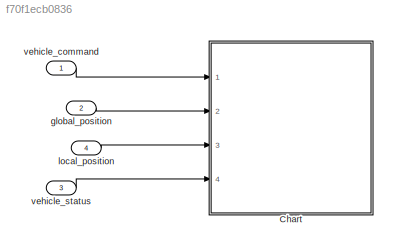
MODEL slx_f70f1ecb0836
KIND model
CONFIG AbsTol = auto
CONFIG EnableMultiTasking = off
CONFIG FixedStep = auto
CONFIG MaxStep = auto
CONFIG MinStep = auto
CONFIG RelTol = 1e-3
CONFIG SampleTimeConstraint = Unconstrained
CONFIG SolverName = VariableStepAuto
CONFIG StartTime = 0.0
CONFIG StopTime = 10.0
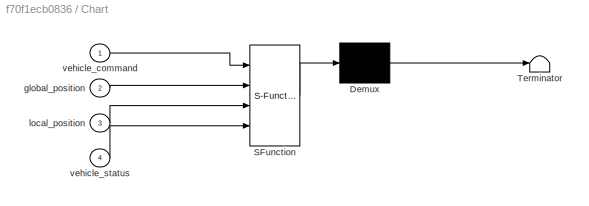
BLOCK [SubSystem] Chart
  ErrorFcn = Stateflow.Translate.translate
  PermitHierarchicalResolution = ExplicitOnly
  Ports = [4]
  RequestExecContextInheritance = off
  SFBlockType = Chart
  TreatAsAtomicUnit = on
BLOCK [Demux] Chart/ Demux 
  Outputs = 1
  Ports = [1, 1]
BLOCK [S-Function] Chart/ SFunction 
  EnableBusSupport = on
  FunctionName = sf_sfun
  Parameters = NAV_ACC_RAD,RTL_CONE_ANG,RTL_LOITER_RAD,RTL_RETURN_ALT
  PortCounts = [4 1]
  Ports = [4, 1]
  SFcnIsStateOwnerBlock = off
  SFunctionDeploymentMode = off
  Tag = Stateflow S-Function 3
BLOCK [Terminator] Chart/ Terminator 
BLOCK [Inport] Chart/global_position
  Port = 2
BLOCK [Inport] Chart/local_position
  Port = 3
BLOCK [Inport] Chart/vehicle_command
BLOCK [Inport] Chart/vehicle_status
  Port = 4
BLOCK [Inport] global_position
  OutDataTypeStr = Bus: px4_vehicle_global_position
  Port = 2
BLOCK [Inport] local_position
  OutDataTypeStr = Bus: px4_vehicle_local_position
  Port = 4
BLOCK [Inport] vehicle_command
  OutDataTypeStr = Bus: px4_vehicle_command
BLOCK [Inport] vehicle_status
  OutDataTypeStr = Bus: px4_vehicle_status
  Port = 3
LINE global_position:1 -> Chart:2
LINE local_position:1 -> Chart:3
LINE vehicle_command:1 -> Chart:1
LINE vehicle_status:1 -> Chart:4
CHART Chart states=34 transitions=22
  STATE_LABEL 'LOITER\n\n'
  STATE_LABEL 'reposition\nen:\n% 当前位置作为上一个航路点\nposition_sp_triplet.previous.lat = global_position.lat;\nposition_sp_triplet.previous.lon = global_position.lon;\nposition_sp_triplet.previous.alt = global_position.alt\nposition_sp_triplet.previous.yaw = local_position.heading;\n% 当前航路点用rep中表示\nposition_sp_triplet.current = reposition_triplte.current;\nposition_sp_triplet.current.velocity_valid = false;\n% 下一个航路点无效\nposition...<+90ch>'
  STATE_LABEL 'disarmed'
  STATE_LABEL 'loiternext\nen:\nmission_item = set_loiter_item(MIS_LTRMIN_ALT);\n% 上个航路\nposition_sp_triplet.previous.valid = false;\n% 当前航点\nmission_item.nav_cmd = MAV_CMD.NAV_LOITER_UNLIMITED;\nmission_item.lat = position_sp_triplet.current.lat;\nmission_item.lon = position_sp_triplet.current.lon;\nmission_item.altitude = position_sp_triplet.current.alt;\nmission_item_to_position_setpoint\n% 下个航点\nposition_sp_triplet.next...<+16ch>'
  STATE_LABEL 'landed\nen,du:\nposition_sp_triplet.current.type = PX4_POSITION_SETPOINT.SETPOINT_TYPE_IDLE;'
  STATE_LABEL 'loiterlocal\nen:\nmission_item = set_loiter_item(MIS_LTRMIN_ALT);\n% 上个航路\nposition_sp_triplet.previous.valid = false;\n% 当前航点\nposition_sp_triplet.current.velocity_valid = false;\n% 下个航点\nposition_sp_triplet.next.valid = false;\n'
  STATE_LABEL '[reposition_triplte.current.valid]'
  STATE_LABEL '[reposition_triplte.current.valid]'
  STATE_LABEL '[land_detected]'
  STATE_LABEL '[position_sp_triplet.current.valid]'
  STATE_LABEL 'reposition\nen:\n% 当前位置作为上一个航路点\nposition_sp_triplet.previous.lat = global_position.lat;\nposition_sp_triplet.previous.lon = global_position.lon;\nposition_sp_triplet.previous.alt = global_position.alt\nposition_sp_triplet.previous.yaw = local_position.heading;\n% 当前航路点用rep中表示\nposition_sp_triplet.current = reposition_triplte.current;\nposition_sp_triplet.current.velocity_valid = false;\n% 下一个航路点无效\nposition...<+90ch>'
  STATE_LABEL 'disarmed'
  STATE_LABEL 'loiternext\nen:\nmission_item = set_loiter_item(MIS_LTRMIN_ALT);\n% 上个航路\nposition_sp_triplet.previous.valid = false;\n% 当前航点\nmission_item.nav_cmd = MAV_CMD.NAV_LOITER_UNLIMITED;\nmission_item.lat = position_sp_triplet.current.lat;\nmission_item.lon = position_sp_triplet.current.lon;\nmission_item.altitude = position_sp_triplet.current.alt;\nmission_item_to_position_setpoint\n% 下个航点\nposition_sp_triplet.next...<+16ch>'
  STATE_LABEL 'landed\nen,du:\nposition_sp_triplet.current.type = PX4_POSITION_SETPOINT.SETPOINT_TYPE_IDLE;'
  STATE_LABEL 'loiterlocal\nen:\nmission_item = set_loiter_item(MIS_LTRMIN_ALT);\n% 上个航路\nposition_sp_triplet.previous.valid = false;\n% 当前航点\nposition_sp_triplet.current.velocity_valid = false;\n% 下个航点\nposition_sp_triplet.next.valid = false;\n'
  STATE_LABEL 'vehicle_command'
  STATE_LABEL 'CMD_DO_GO_AROUND'
  STATE_LABEL 'CMD_DO_REPOSITION\nen:\n'
  STATE_LABEL 'get_reposition_setpoint'
  STATE_LABEL 'SCRIPT:\nfunction get_reposition_setpoint\n\n%% 判断reposition是否在禁飞区内\nif GF_ACTION ~= PX4_GEOFENCE_RESULT.GF_ACTION_NONE &&  GF_ACTION ~= PX4_GEOFENCE_RESULT.GF_ACTION_WARN\n    %mavlink_log_critical(&_mavlink_log_pub, "Reposition is outside geofence\\t");\n    %events::send(events::ID("navigator_reposition_outside_geofence"), {events::Log::Error, events::LogInternal::Info},\n    %"Reposition is outside ge...<+2164ch>'  <repeated x3 — deduplicated; at blocks: Chart>
  STATE_LABEL 'CMD_NAV_TAKEOFF'
  STATE_LABEL 'CMD_DO_GO_AROUND'
  STATE_LABEL 'CMD_DO_REPOSITION\nen:\n'
  STATE_LABEL 'get_reposition_setpoint'
  STATE_LABEL 'get_reposition_setpoint'
  STATE_LABEL 'CMD_NAV_TAKEOFF'
  STATE_LABEL 'RTL\nen:\nget_rtl_alt_and_rad()\nen,du:\n% 计算到着陆点的距离\ndestination_dist = get_distance_to_next_waypoint(destination.lat, destination.lon, global_position.lat, gloabl_position.lon)\n'
  STATE_LABEL 'get_rtl_alt_and_rad'
  STATE_LABEL 'SCRIPT:\nfunction get_rtl_alt_and_rad\n% 盘旋半径\n% RTL_LOITER_RAD=1;\n% RTL_CONE_ANG =1;\n\n\nrtl_loiter_rad = RTL_LOITER_RAD;\n% \n% % 返回高度\n% if vehicle_status.vehicle_type == PX4_VEHICLE_STATUS.VEHICLE_TYPE_ROTARY_WING\n%     rtl_alt = calculate_return_alt_from_cone_half_angle(RTL_CONE_ANG);\n% else\n%     rtl_alt = max(global_position.alt, destination.alt + RTL_RETURN_ALT);\n% end\n% \n% \n% function alt = calcu...<+1554ch>'
  STATE_LABEL 'RTL_STATE_CLIMB\nen,du:\nif vehicle_status.vehicle_type == PX4_VEHICLE_STATUS.VEHICLE_TYPE_ROTARY_WING\n    % 如果多旋翼则直接爬升到给定高度\n    mission_item.nav_cmd = uint16(MAV_CMD.NAV_WAYPOINT);\nelse\n    %如果是固定翼，则盘旋上升到给定高度\n    mission_item.nav_cmd = uint16(MAV_CMD.NAV_LOITER_TO_ALT);\nend\nmission_item.lat = global_position.lat;\nmission_item.lon = global_position.lon;\nmission_item.altitude = 0;\nmission_item.altitu...<+419ch>'
  STATE_LABEL 'RTL_STATE_RETURN\nen,du:\nmission_item.nav_cmd = NAV_CMD.NAV_WAYPOINT;\nmission_item.lat = destination.lat;\nmission_item.lon = destination.lon;\nmission_item.altitude = 0;\nmission_item.altitude_is_relative = false;\nif destination_dist < RTL_MIN_DIST\n    % 如果离着陆点很近，则采用着陆的航向\n    mission_item.yaw = destination.yaw;\nelse\n    % 否则机头指向着陆点\n    mission_item.yaw = get_bearing_to_next_waypoint(global_position.l...<+243ch>'
  STATE_LABEL 'RTL_STATE_DESCEND\nen,du:\nmission_item.nav_cmd = uint16(MAV_CMD.NAV_LOITER_TO_ALT);\nmission_item.lat = destination.lat;\nmission_item.lon = destination.lon;\nmission_item.altitude = loiter_altitude;\nmission_item.altitude_is_relative = false;\n% Except for vtol which might be still off here and should point towards this location.\nd_current = get_distance_to_next_waypoint(global_position.lat, global_pos...<+626ch>'
  STATE_LABEL "RTL_STATE_LOITER\nen,du:\nautoland = RTL_LAND_DELAY > 0;\n% Don't change altitude.\nmission_item.lat = destination.lat;\nmission_item.lon = destination.lon;\nmission_item.altitude = loiter_altitude;\nmission_item.altitude_is_relative = false;\nmission_item.yaw = destination.yaw;\nmission_item.loiter_radius = get_loiter_radius();\nmission_item.acceptance_radius = get_acceptance_radius();\nmission_item.time_in...<+748ch>"
  STATE_LABEL 'RTL_STATE_LAND\nen,du:\n% Land at destination.\nmission_item.nav_cmd = NAV_CMD_LAND;\nmission_item.lat = destination.lat;\nmission_item.lon = destination.lon;\nmission_item.yaw = destination.yaw;\nmission_item.altitude = destination.alt;\nmission_item.altitude_is_relative = false;\nmission_item.acceptance_radius = get_acceptance_radius();\nmission_item.time_inside = 0.0;\nmission_item.autocontinue = true;\nmi...<+606ch>'
  STATE_LABEL 'RTL_MOVE_TO_LAND_HOVER_VTOL\nen,du:\nmission_item.nav_cmd = uint16(MAV_CMD.NAV_WAYPOINT);\nmission_item.lat = destination.lat;\nmission_item.lon = destination.lon;\nmission_item.altitude = loiter_altitude;\nmission_item.altitude_is_relative = false;\nmission_item.yaw = get_bearing_to_next_waypoint(global_position.lat, global_position.lon, mission_item.lat, mission_item.lon);\nmission_item.acceptance_radiu...<+85ch>'
  STATE_LABEL 'RTL_STATE_TRANSITION_TO_MC\nen,du:\nmission_item.nav_cmd = uint16(MAV_CMD.DO_VTOL_TRANSITION);\nmission_item.params(1) = single(VTOL_VEHICLE_STATUS.VEHICLE_VTOL_STATE_MC);\nmission_item.params(2) = 0.0;\nmission_item.yaw = local_position.heading;\nmission_item.autocontinue = true;'
  STATE_LABEL 'RTL_STATE_HEAD_TO_CENTER'
  STATE_LABEL 'RTL_STATE_LANDED\nen,du:\nmission_item.nav_cmd = uint16(0);\nmission_item.lat = home.lat;\nmission_item.lon = home.lon;\nmission_item.altitude_is_relative = false;\nmission_item.altitude = home.alt;\nmission_item.yaw = NaN;\nmission_item.loiter_radius = get_loiter_radius();\nmission_item.acceptance_radius = get_acceptance_radius();\nmission_item.time_inside = 0.0;\nmission_item.autocontinue = true;\nmission_i...<+47ch>'
CHART  states=0 transitions=0
